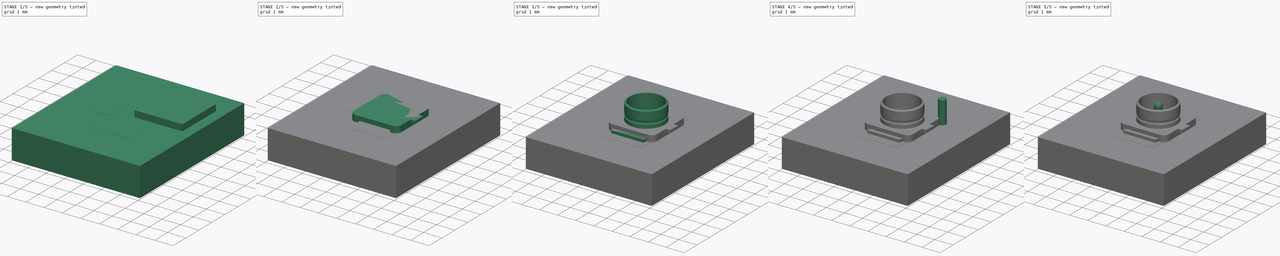
[diagram: build sequence overview — one tinted view per stage of 5, left to right]
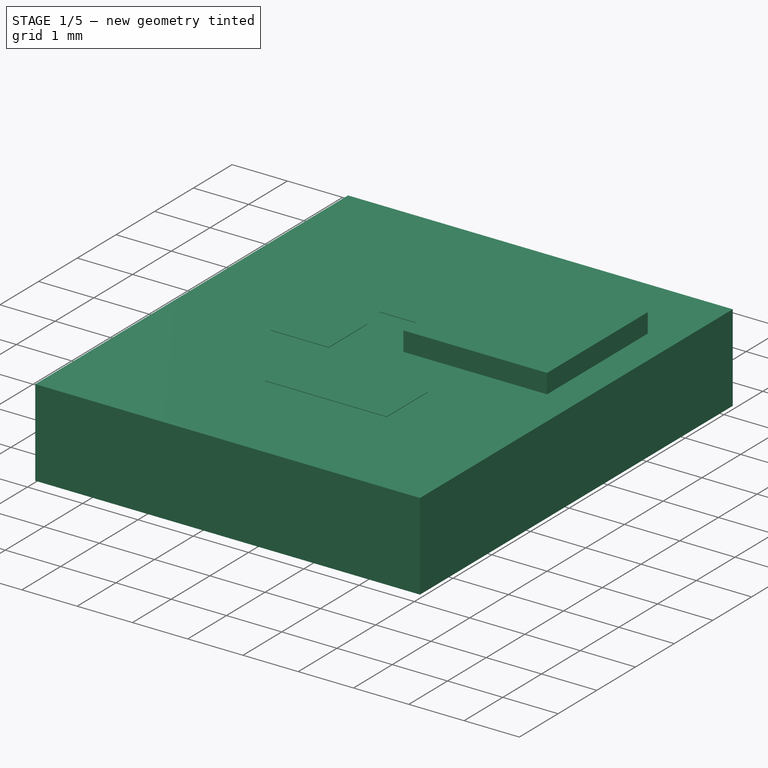
[diagram: stage 1 of 5 — iso view after this stage's code; geometry added in this stage tinted green]
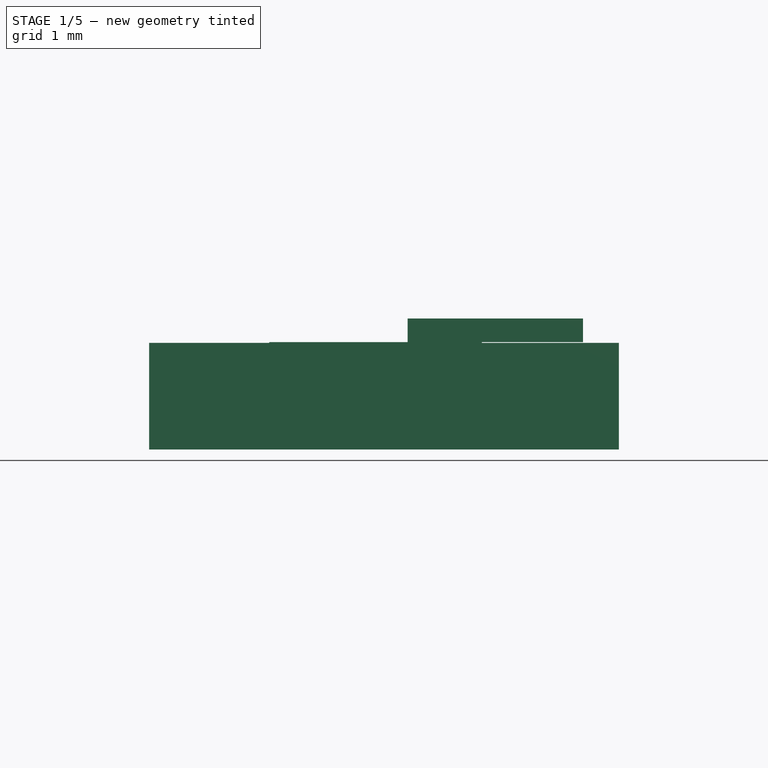
[diagram: stage 1 of 5 — front view after this stage's code; geometry added in this stage tinted green]
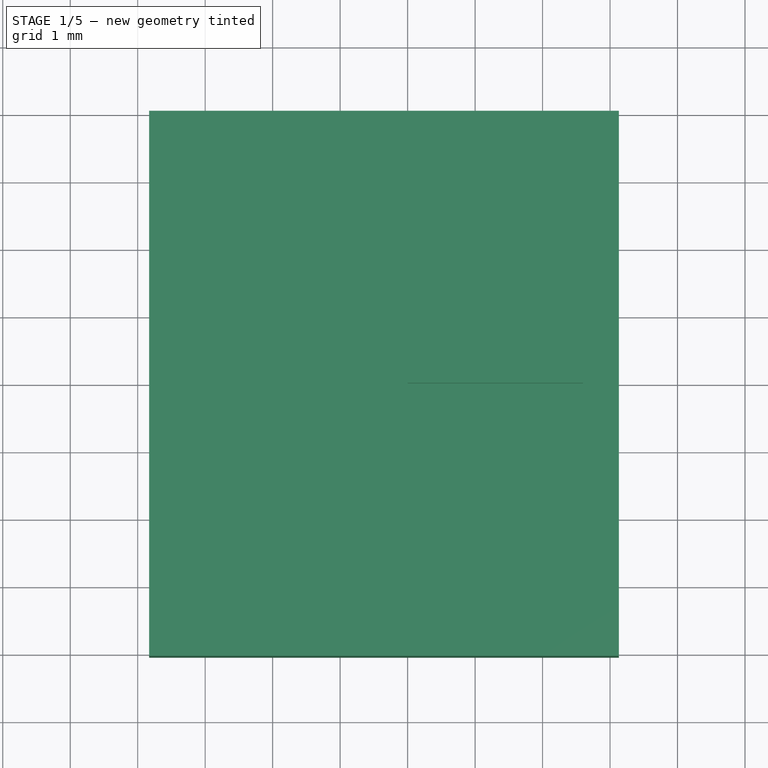
[diagram: stage 1 of 5 — top view after this stage's code; geometry added in this stage tinted green]
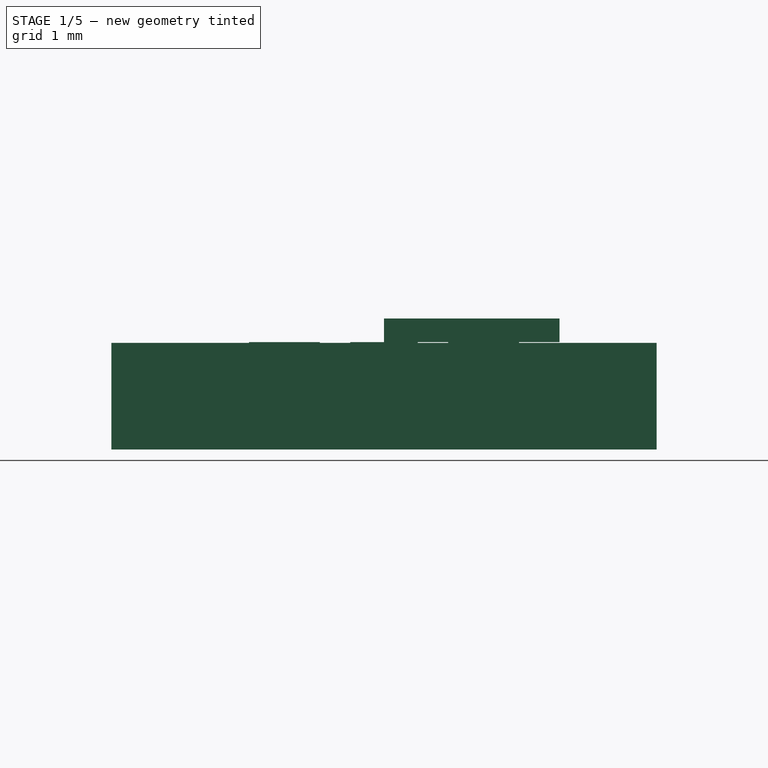
[diagram: stage 1 of 5 — right view after this stage's code; geometry added in this stage tinted green]
FCSTD DOCUMENT  (FreeCAD 0.17R12433 (Git))
Label: U.FL_Hirose_U.FL-R-SMT-1_Vertical
License: All rights reserved
LicenseURL: http://en.wikipedia.org/wiki/All_rights_reserved
objects: Part::Box×5, Part::FeaturePython×5, Part::MultiFuse×3, Part::Fillet×2, Part::Cylinder×2, Part::Feature×2, Sketcher::SketchObject×1, PartDesign::Revolution×1, PartDesign::Body×1, Part::Cut×1, App::DocumentObjectGroup×1
note: 24 computed .brp shape members not serialized (recipe doc carries the construction recipe); baked Part::Feature solids carry a one-line shape summary decoded from their .brp

FEATURE [Part::Box] Box  label="Cube"
  AttacherType = Attacher::AttachEngine3D
  Height = 0.35
  Length = 2.6
  Width = 2.6
FEATURE [Part::FeaturePython] FCrtYd_lines  label="FCrtYd"  # a2plus imported part (geometry in sourceFile) (typed FeaturePython)
  fixedPosition = true
FEATURE [Part::FeaturePython] FFab_lines  label="FFab"  # a2plus imported part (geometry in sourceFile) (typed FeaturePython)
  fixedPosition = true
FEATURE [Part::FeaturePython] Filk_lines  label="FrontSilk"  # a2plus imported part (geometry in sourceFile) (typed FeaturePython)
  fixedPosition = true
FEATURE [Part::FeaturePython] TopPads  # a2plus imported part (geometry in sourceFile) (typed FeaturePython)
  fixedPosition = true
FEATURE [Part::FeaturePython] newPCB  label="Pcb"  # a2plus imported part (geometry in sourceFile) (typed FeaturePython)
  fixedPosition = true
FEATURE [App::DocumentObjectGroup] U_FL_Hirose_U_FL_R_SMT_1_Vertical_fp
  Group = -> [FCrtYd_lines,FFab_lines,Filk_lines,TopPads,newPCB]
FEATURE [Part::Feature] Shape001  label="U.FL_Hirose_U.FL-R-SMT-1_Vertical"
  shape: bbox 3.1 x 3 x 1.25 mm, 46 faces (baked)
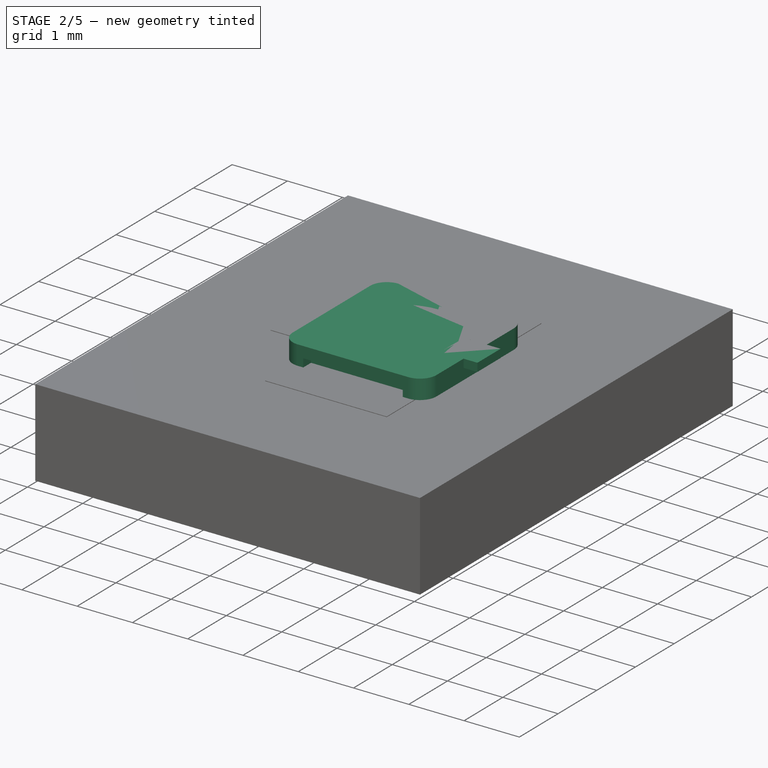
[diagram: stage 2 of 5 — iso view after this stage's code; geometry added in this stage tinted green]
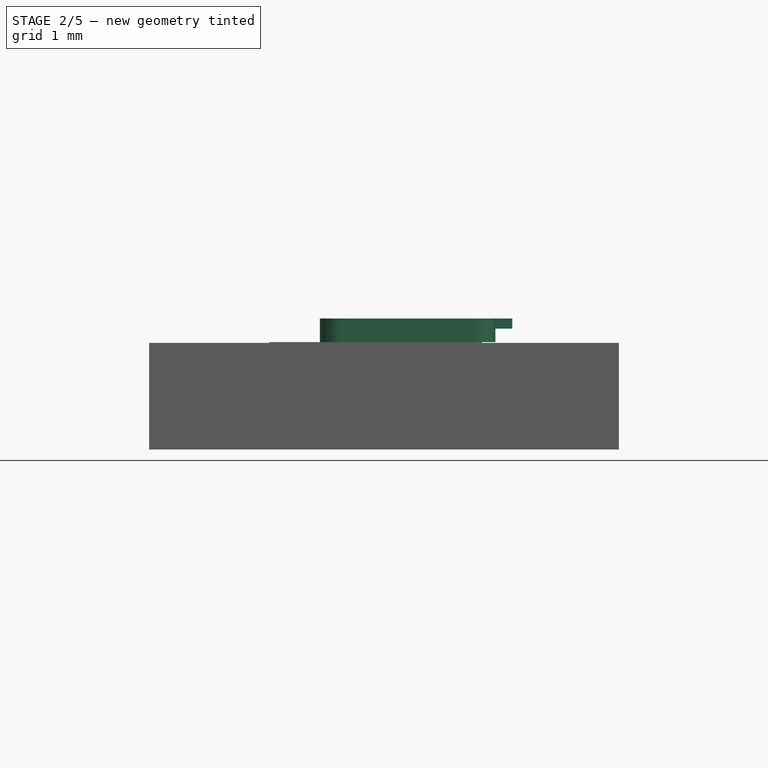
[diagram: stage 2 of 5 — front view after this stage's code; geometry added in this stage tinted green]
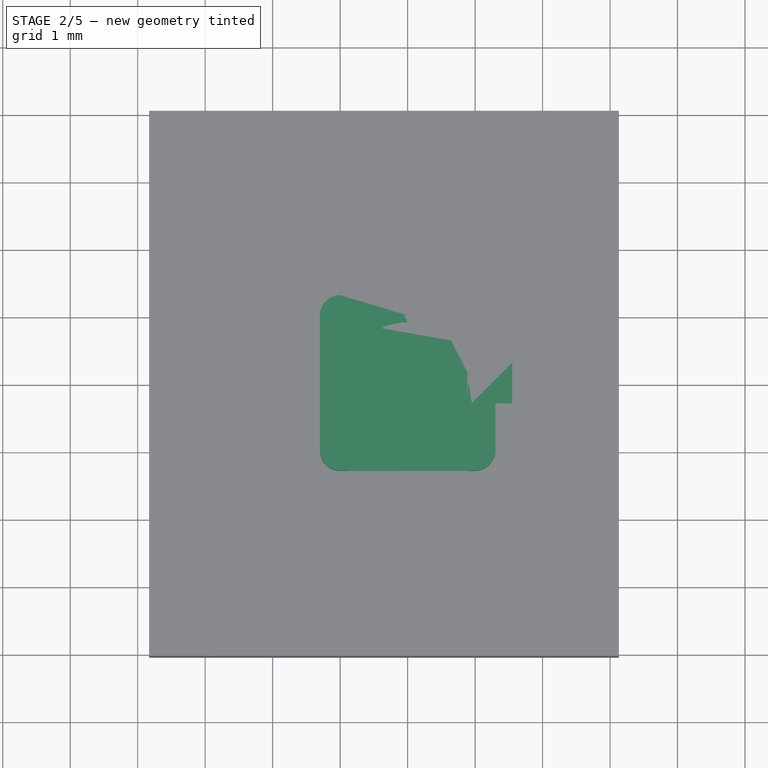
[diagram: stage 2 of 5 — top view after this stage's code; geometry added in this stage tinted green]
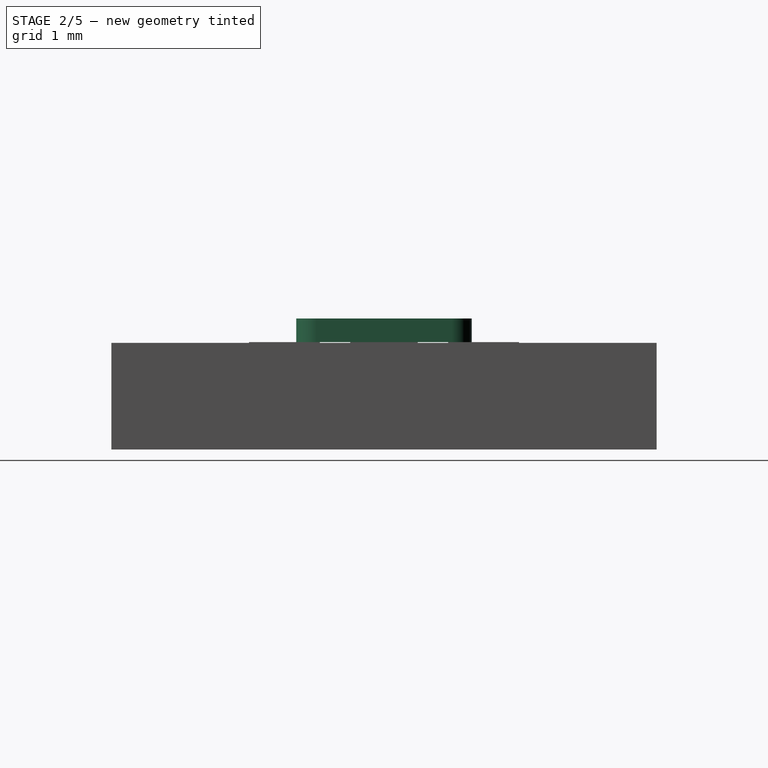
[diagram: stage 2 of 5 — right view after this stage's code; geometry added in this stage tinted green]
FEATURE [Part::Fillet] Fillet  label="Body001"
  Base = -> Box
  Edges = 4 edges r=0.3: [Edge1,Edge3,Edge5,Edge7]
  Placement = pos=(-1.3,-1.3,0) rot=(0,0,1;0rad)
FEATURE [PartDesign::Body] Body  label="Body002"
  Group = -> [Sketch,Revolution]
  Origin = -> Origin
  Tip = -> Revolution
FEATURE [Part::Box] Box004  label="Cube004"
  AttacherType = Attacher::AttachEngine3D
  Height = 0.15
  Length = 0.6
  Placement = pos=(0.95,-0.3,0.2) rot=(0,0,1;0rad)
  Width = 0.6
FEATURE [Part::Feature] Fusion002001  label="GND002"
  shape: bbox 2.55 x 3 x 1.25 mm, 27 faces, 3 solids (baked)
FEATURE [Part::Cut] Cut
  Base = -> Fillet
  Tool = -> Fusion002001
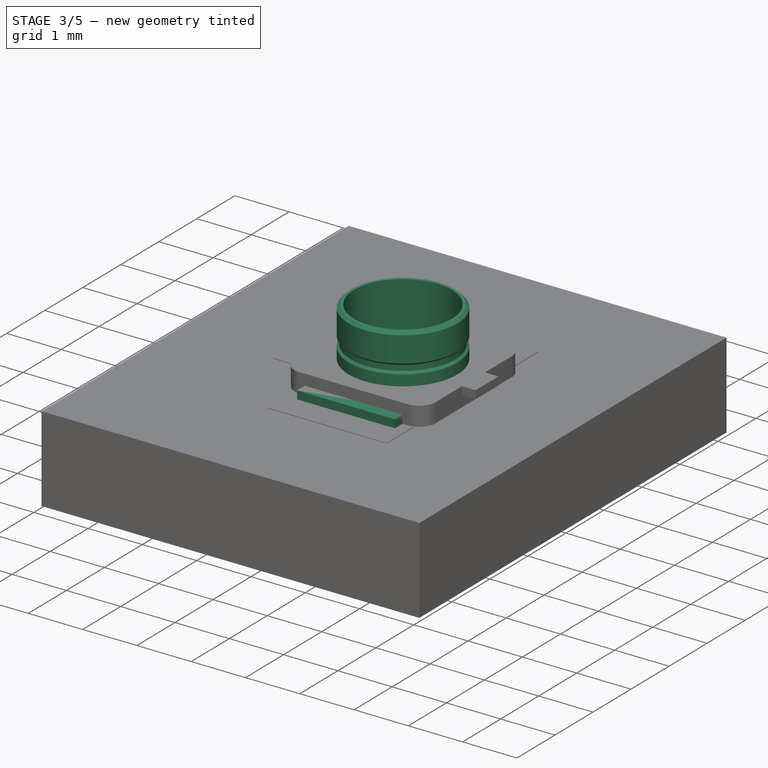
[diagram: stage 3 of 5 — iso view after this stage's code; geometry added in this stage tinted green]
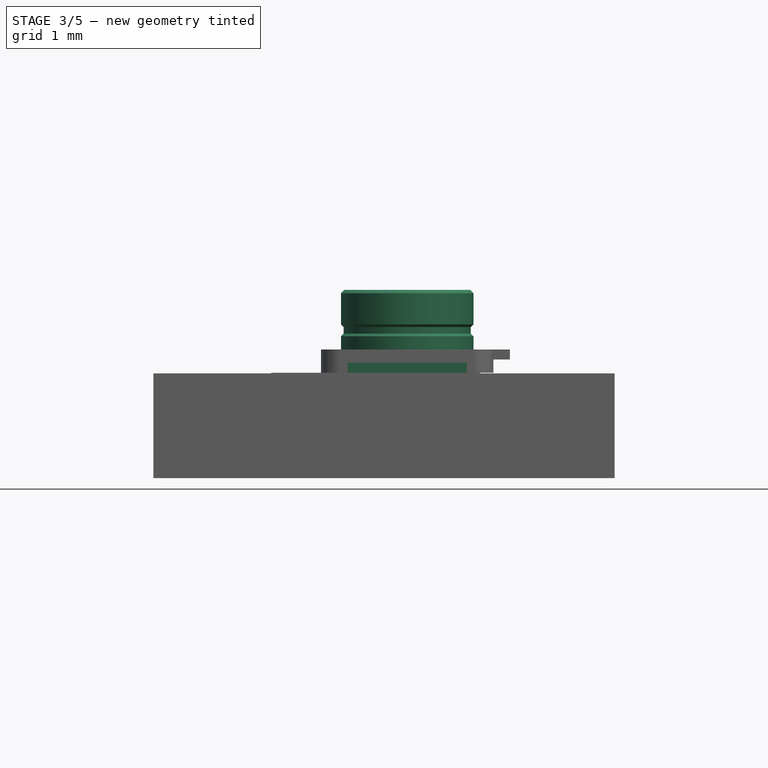
[diagram: stage 3 of 5 — front view after this stage's code; geometry added in this stage tinted green]
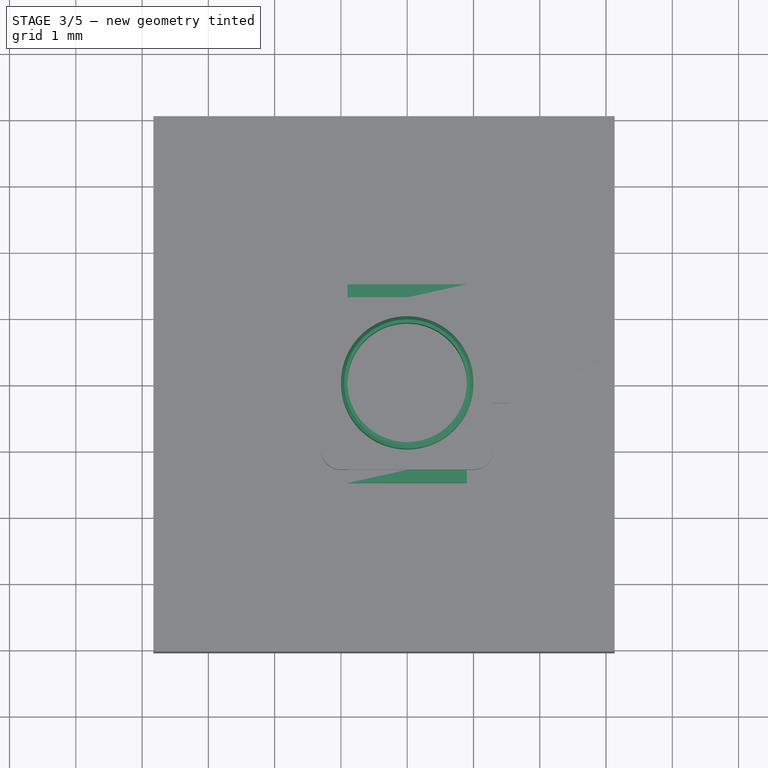
[diagram: stage 3 of 5 — top view after this stage's code; geometry added in this stage tinted green]
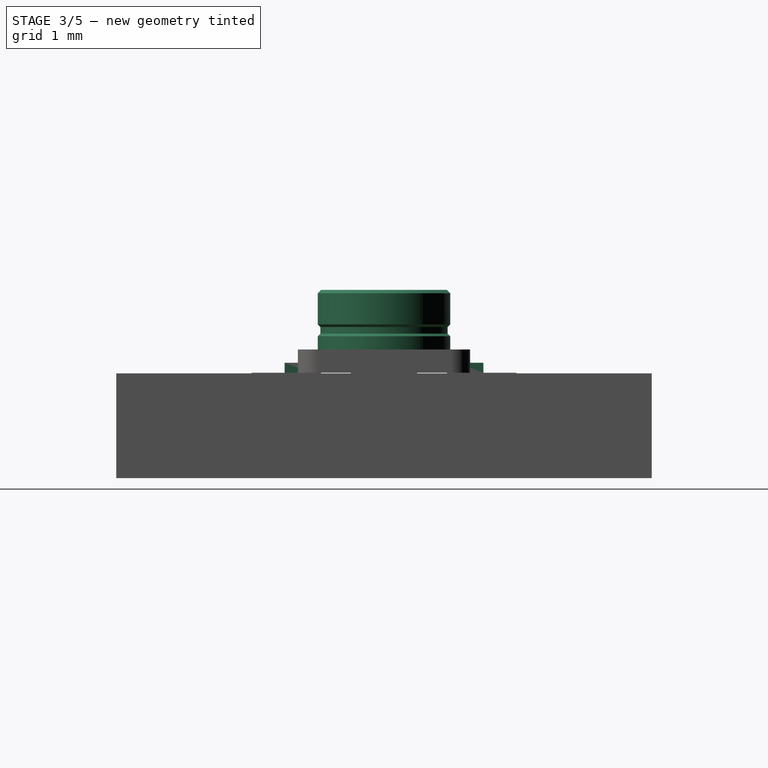
[diagram: stage 3 of 5 — right view after this stage's code; geometry added in this stage tinted green]
FEATURE [Part::Box] Box001  label="wing"
  AttacherType = Attacher::AttachEngine3D
  Height = 0.15
  Length = 1.8
  Placement = pos=(0.4,-0.2,0) rot=(0,0,1;0rad)
  Width = 0.4
FEATURE [Part::Box] Box002  label="Cube002"
  AttacherType = Attacher::AttachEngine3D
  Height = 0.15
  Length = 1.8
  Placement = pos=(0.4,2.4,0) rot=(0,0,1;0rad)
  Width = 0.4
FEATURE [Part::MultiFuse] Fusion  label="GND"
  Placement = pos=(-1.3,-1.3,0) rot=(0,0,1;0rad)
  Shapes = -> [Box002,Box001]
FEATURE [Sketcher::SketchObject] Sketch
  MapMode = 5
  Placement = pos=(0,0,0) rot=(0.57735,0.57735,0.57735;2.0944rad)
  Support = -> [YZ_Plane]
  sketch-geometry (9):
    g0: LineSegment StartX=0.9 StartY=0.35 StartZ=0 EndX=0.9 EndY=1.25 EndZ=0
    g1: LineSegment StartX=1 StartY=1.2 StartZ=0 EndX=1 EndY=0.73 EndZ=0
    g2: LineSegment StartX=1 StartY=0.73 StartZ=0 EndX=0.96 EndY=0.69 EndZ=0
    g3: LineSegment StartX=0.96 StartY=0.69 StartZ=0 EndX=0.96 EndY=0.59 EndZ=0
    g4: LineSegment StartX=0.96 StartY=0.59 StartZ=0 EndX=1 EndY=0.55 EndZ=0
    g5: LineSegment StartX=1 StartY=0.55 StartZ=0 EndX=1 EndY=0.35 EndZ=0
    g6: LineSegment StartX=0.9 StartY=0.35 StartZ=0 EndX=1 EndY=0.35 EndZ=0
    g7: LineSegment StartX=0.9 StartY=1.25 StartZ=0 EndX=0.95 EndY=1.25 EndZ=0
    g8: LineSegment StartX=0.95 StartY=1.25 StartZ=0 EndX=1 EndY=1.2 EndZ=0
  constraints (27):
    c: Vertical(g0)
    c: Vertical(g1)
    c: Coincident(g2,g1)
    c: Coincident(g3,g2)
    c: Vertical(g3)
    c: Coincident(g4,g3)
    c: Coincident(g6,g0)
    c: Coincident(g6,g5)
    c: Horizontal(g6)
    c: Vertical(g5)
    c: DistanceX(g-1,g1) = 1
    c: Coincident(g5,g4)
    c: DistanceX(g4,g1) = 0
    c: DistanceY(g-1,g5) = 0.35
    c: Angle(g4) = -0.785398
    c: Angle(g2) = -2.35619
    c: DistanceX(g0,g5) = 0.1
    c: DistanceX(g2,g1) = 0.04
    c: DistanceY(g5,g5) = 0.2
    c: DistanceY(g0,g0) = 0.9
    c: Coincident(g7,g0)
    c: Horizontal(g7)
    c: Coincident(g8,g7)
    c: Coincident(g8,g1)
    c: DistanceX(g7,g7) = 0.05
    c: Angle(g8) = -0.785398
    c: DistanceY(g3,g3) = 0.1
FEATURE [PartDesign::Revolution] Revolution
  Angle = 360
  Axis = (0,0,1)
  Base = (0,0,0)
  Placement = pos=(0,0,0) rot=(0.57735,0.57735,0.57735;2.0944rad)
  Profile = -> Sketch
  ReferenceAxis = -> Sketch [V_Axis]
  Reversed = true
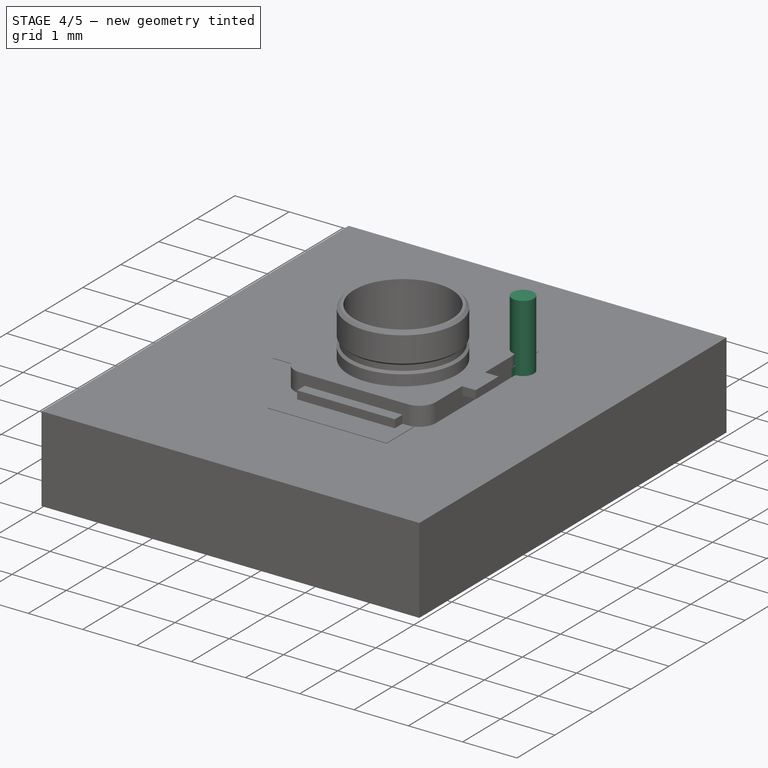
[diagram: stage 4 of 5 — iso view after this stage's code; geometry added in this stage tinted green]
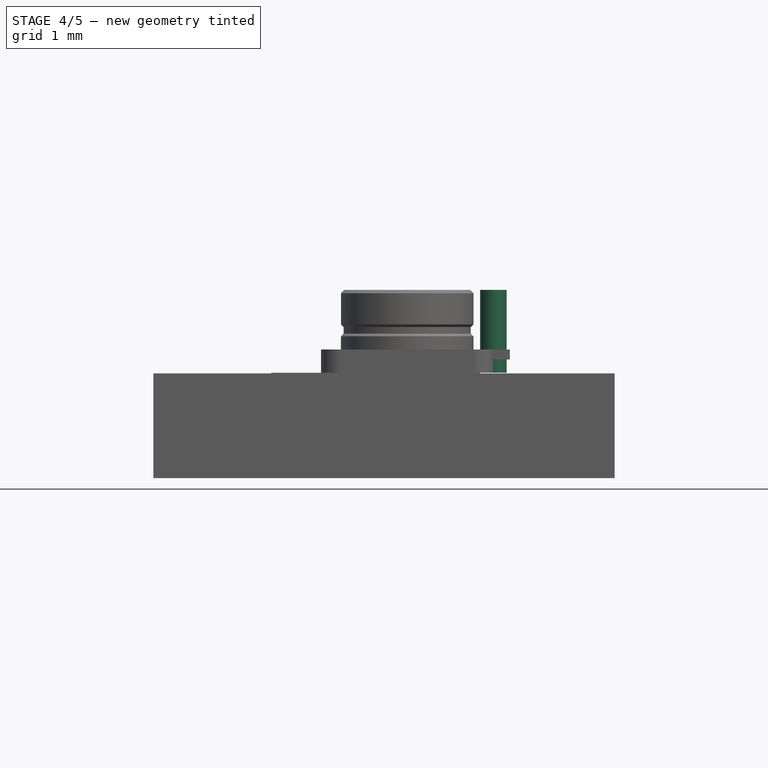
[diagram: stage 4 of 5 — front view after this stage's code; geometry added in this stage tinted green]
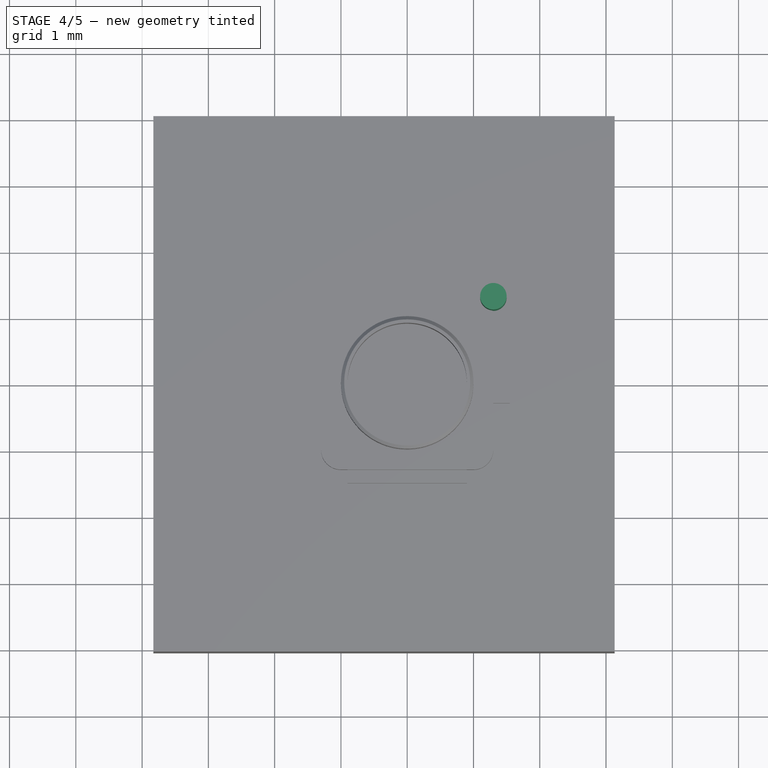
[diagram: stage 4 of 5 — top view after this stage's code; geometry added in this stage tinted green]
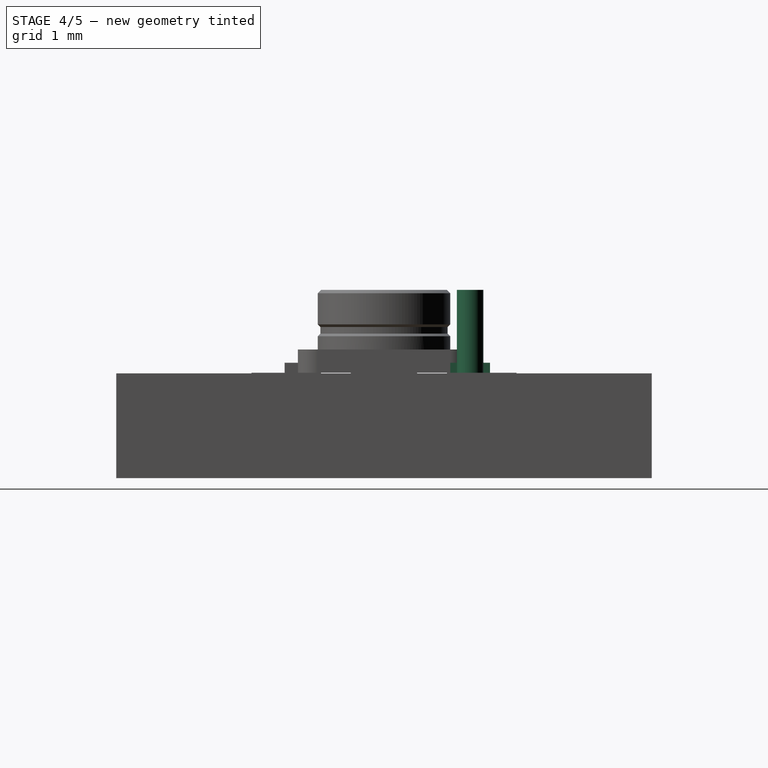
[diagram: stage 4 of 5 — right view after this stage's code; geometry added in this stage tinted green]
FEATURE [Part::Box] Box003  label="Cube003"
  AttacherType = Attacher::AttachEngine3D
  Height = 0.15
  Length = 1.55
  Placement = pos=(-0.25,1,0) rot=(0,0,1;0rad)
  Width = 0.6
FEATURE [Part::Cylinder] Cylinder001
  Angle = 360
  AttacherType = Attacher::AttachEngine3D
  Height = 1.25
  Placement = pos=(1.3,1.3,0) rot=(0,0,1;0rad)
  Radius = 0.2
FEATURE [Part::MultiFuse] Fusion002  label="GND001"
  Shapes = -> [Fusion,Body,Box004]
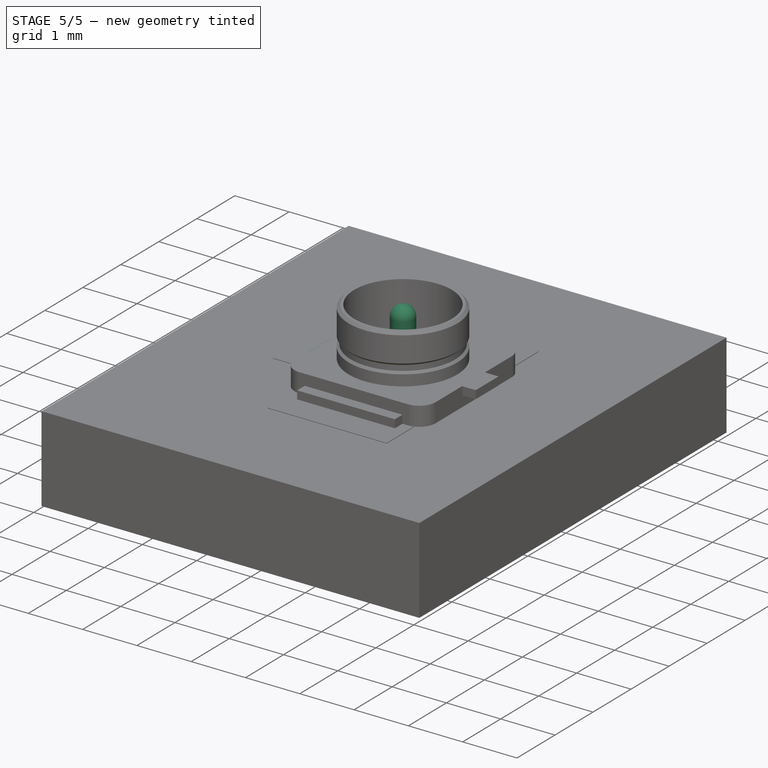
[diagram: stage 5 of 5 — iso view after this stage's code; geometry added in this stage tinted green]
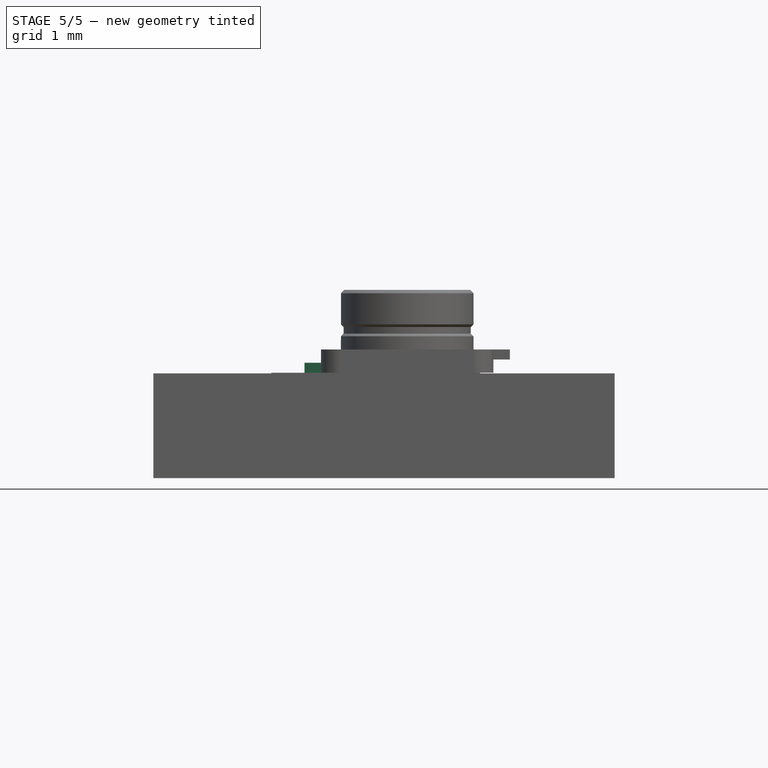
[diagram: stage 5 of 5 — front view after this stage's code; geometry added in this stage tinted green]
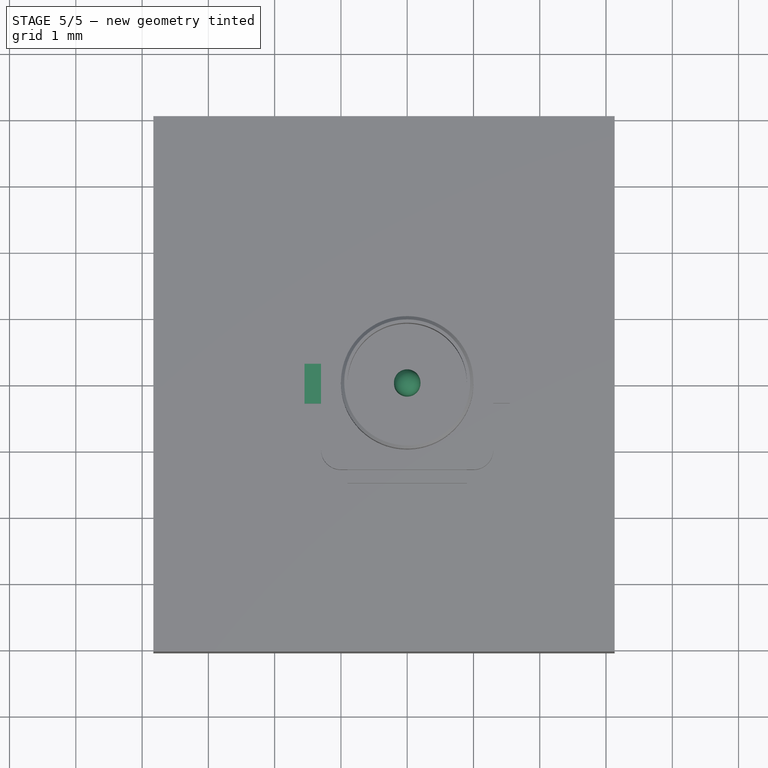
[diagram: stage 5 of 5 — top view after this stage's code; geometry added in this stage tinted green]
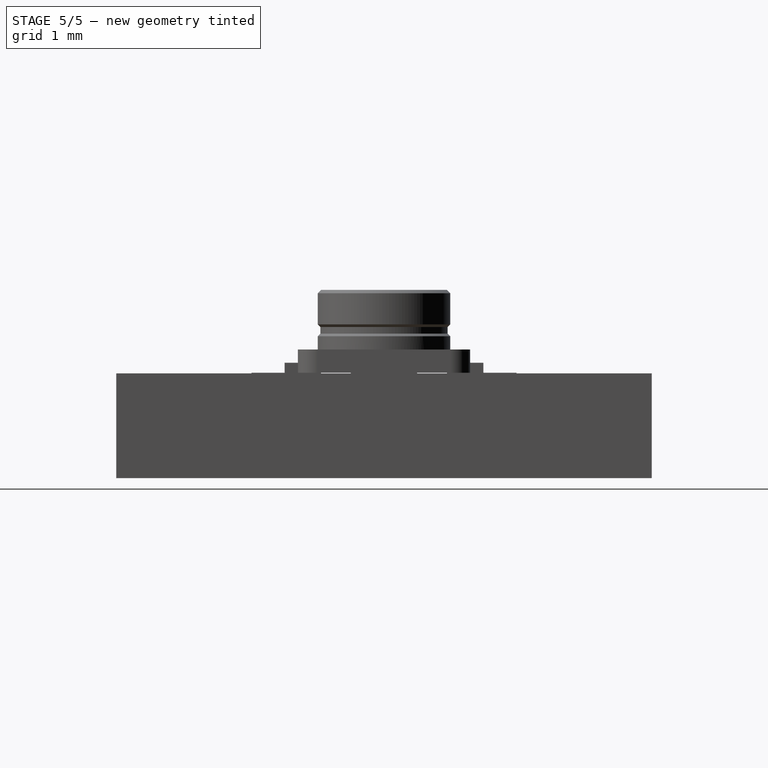
[diagram: stage 5 of 5 — right view after this stage's code; geometry added in this stage tinted green]
FEATURE [Part::Cylinder] Cylinder
  Angle = 360
  AttacherType = Attacher::AttachEngine3D
  Height = 0.15
  Placement = pos=(1.3,1.3,0) rot=(0,0,1;0rad)
  Radius = 0.4
FEATURE [Part::MultiFuse] Fusion001  label="pin"
  Shapes = -> [Cylinder,Box003,Cylinder001]
FEATURE [Part::Fillet] Fillet001  label="Pin"
  Base = -> Fusion001
  Edges = 1 edges r=0.2: [Edge33]
  Placement = pos=(-1.3,-1.3,0) rot=(0,0,1;0rad)
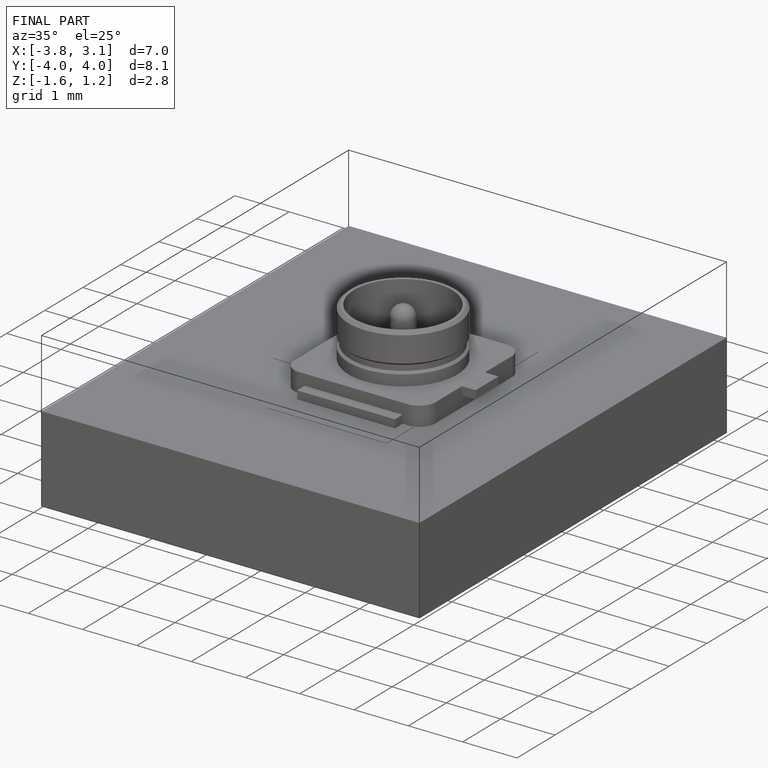
[diagram: finished part — iso view with bounding-box wireframe]
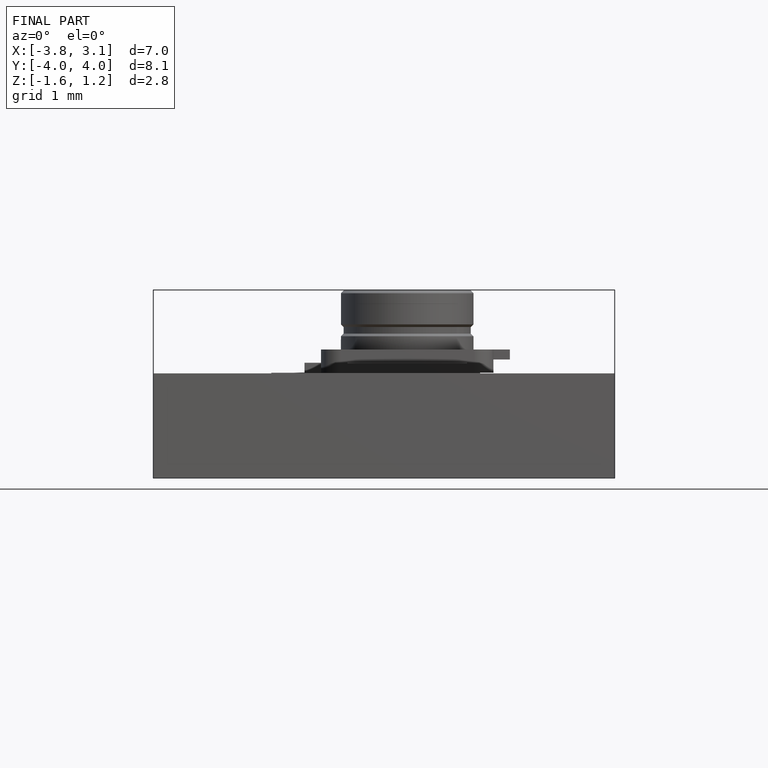
[diagram: finished part — front view with bounding-box wireframe]
